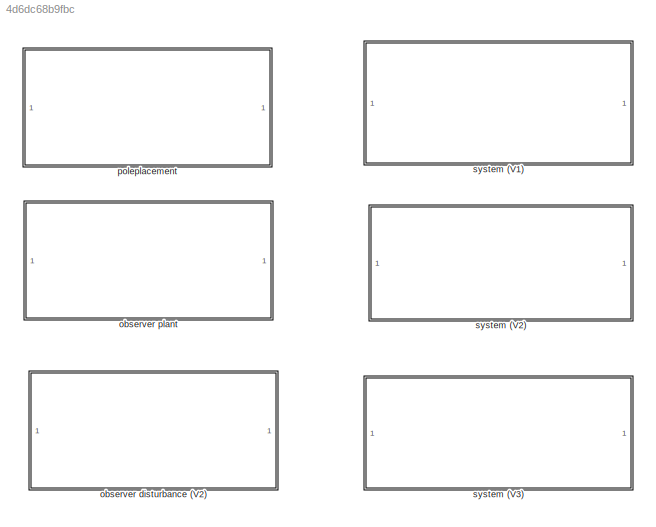
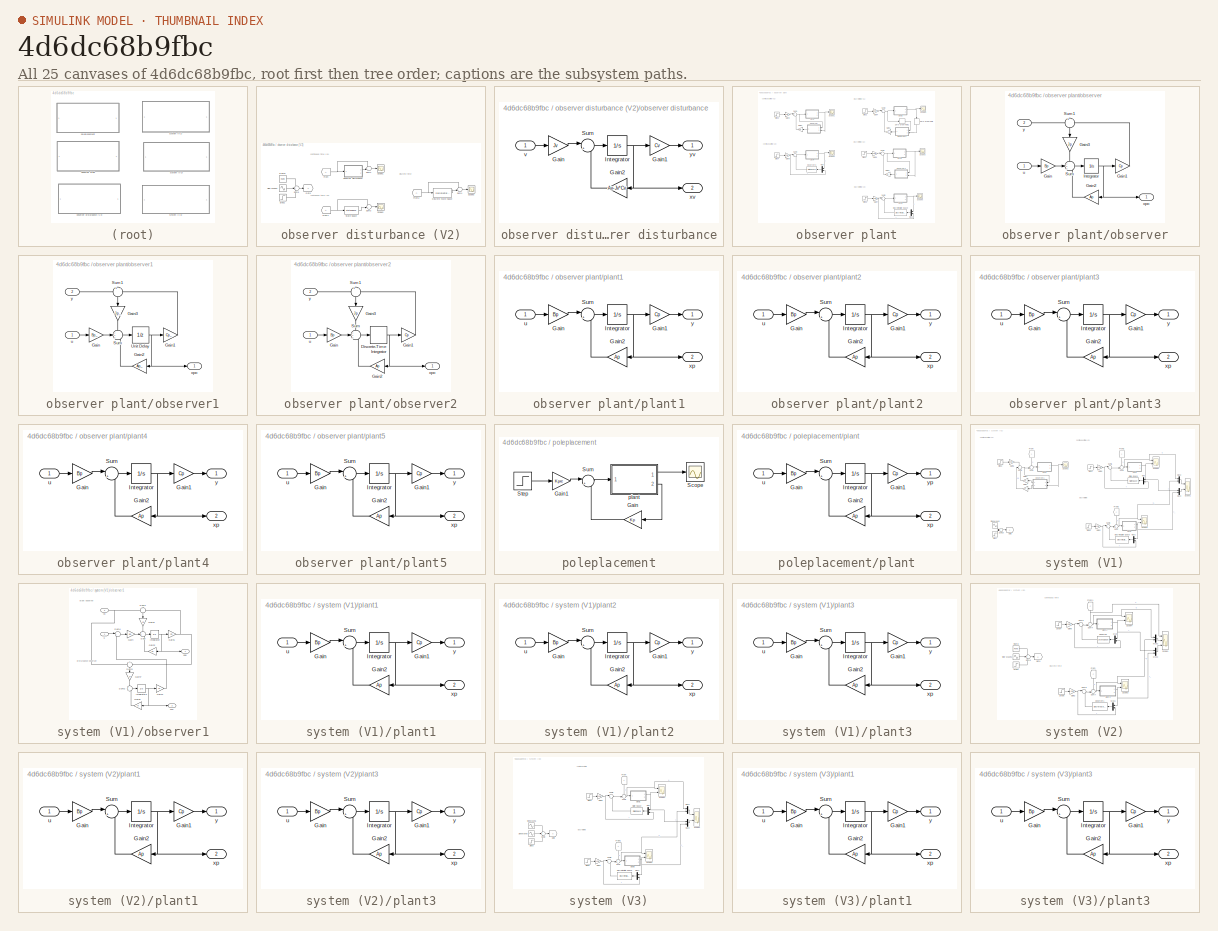
[diagram: thumbnail index - all 25 canvases of the model, root first then tree order]
MODEL slx_4d6dc68b9fbc
KIND model
CONFIG AbsTol = auto
CONFIG EnableMultiTasking = off
CONFIG FixedStep = auto
CONFIG MaxStep = auto
CONFIG MinStep = auto
CONFIG RelTol = 1e-3
CONFIG SampleTimeConstraint = Unconstrained
CONFIG Solver = VariableStepAuto
CONFIG SolverName = VariableStepAuto
CONFIG StartTime = 0.0
CONFIG StopTime = 10.0
BLOCK [SubSystem] observer disturbance (V2)
  Ports = []
  RequestExecContextInheritance = off
BLOCK [DiscreteStateSpace] observer disturbance (V2)/Discrete State-Space
  A = Avo_
  B = Bvo_
  C = Cvo_
  D = Dvo_
  SampleTime = Ts
BLOCK [From] observer disturbance (V2)/From
BLOCK [From] observer disturbance (V2)/From1
BLOCK [From] observer disturbance (V2)/From2
BLOCK [Goto] observer disturbance (V2)/Goto
BLOCK [Reference] observer disturbance (V2)/Ramp  REF=simulink/Sources/Ramp
  Ports = [0, 1]
  SourceBlock = simulink/Sources/Ramp
  SourceProductBaseCode = SL
  SourceProductName = Simulink
  SourceType = Ramp
BLOCK [Scope] observer disturbance (V2)/Scope1
  Floating = off
  NumInputPorts = 1
  Ports = [1]
  ScopeSpecificationString = Simulink.scopes.TimeScopeBlockCfg('CurrentConfiguration', extmgr.ConfigurationSet(extmgr.Configuration('Core','General UI',true),extmgr.Configuration('Core','Source UI',true),extmgr.Configuration('Sources','WiredSimulink',true,'DataLoggingVariableName','ScopeData1'),extmgr.Configuration('Visuals','Time Domain',true,'SerializedDisplays',{struct('MinYLimReal','-2.27312','MaxYLimReal','0.51134','YLab...<+1488ch>
BLOCK [Scope] observer disturbance (V2)/Scope2
  Floating = off
  NumInputPorts = 1
  Ports = [1]
  ScopeSpecificationString = Simulink.scopes.TimeScopeBlockCfg('CurrentConfiguration', extmgr.ConfigurationSet(extmgr.Configuration('Core','General UI',true),extmgr.Configuration('Core','Source UI',true),extmgr.Configuration('Sources','WiredSimulink',true,'DataLoggingVariableName','ScopeData1'),extmgr.Configuration('Visuals','Time Domain',true,'SerializedDisplays',{struct('MinYLimReal','-2.27312','MaxYLimReal','0.51134','YLab...<+1488ch>
BLOCK [Scope] observer disturbance (V2)/Scope3
  Floating = off
  NumInputPorts = 1
  Ports = [1]
  ScopeSpecificationString = Simulink.scopes.TimeScopeBlockCfg('CurrentConfiguration', extmgr.ConfigurationSet(extmgr.Configuration('Core','General UI',true),extmgr.Configuration('Core','Source UI',true),extmgr.Configuration('Sources','WiredSimulink',true,'DataLoggingVariableName','ScopeData2'),extmgr.Configuration('Visuals','Time Domain',true,'SerializedDisplays',{struct('MinYLimReal','-2.27312','MaxYLimReal','0.51134','YLab...<+1488ch>
BLOCK [Sin] observer disturbance (V2)/Sine Wave1
  Amplitude = 2
  Frequency = 2*ref
  Ports = [0, 1]
  SampleTime = 0
BLOCK [StateSpace] observer disturbance (V2)/State-Space
  A = Av-Jv*Cv
  B = Jv
  C = Cv
  D = zeros(size(Cv,1),size(Jv,2))
  InitialCondition = 0
  Ports = [1, 1]
BLOCK [Step] observer disturbance (V2)/Step1
  After = 2
  SampleTime = 0
  Time = 4
BLOCK [Sum] observer disturbance (V2)/Sum2
  IconShape = round
  InputSameDT = off
  Inputs = -+|
  OutDataTypeStr = Inherit: Inherit via internal rule
  Ports = [2, 1]
  SaturateOnIntegerOverflow = off
BLOCK [Sum] observer disturbance (V2)/Sum3
  IconShape = round
  InputSameDT = off
  Inputs = -+|
  OutDataTypeStr = Inherit: Inherit via internal rule
  Ports = [2, 1]
  SaturateOnIntegerOverflow = off
BLOCK [Sum] observer disturbance (V2)/Sum4
  IconShape = round
  InputSameDT = off
  Inputs = -+|
  OutDataTypeStr = Inherit: Inherit via internal rule
  Ports = [2, 1]
  SaturateOnIntegerOverflow = off
BLOCK [Sum] observer disturbance (V2)/Sum6
  IconShape = round
  InputSameDT = off
  Inputs = +++
  OutDataTypeStr = Inherit: Inherit via internal rule
  Ports = [3, 1]
  SaturateOnIntegerOverflow = off
BLOCK [SubSystem] observer disturbance (V2)/observer disturbance
  Ports = [1, 2]
  RequestExecContextInheritance = off
BLOCK [Gain] observer disturbance (V2)/observer disturbance/Gain
  Gain = Jv
  Multiplication = Matrix(K*u)
  OutDataTypeStr = Inherit: Inherit via internal rule
  ParamDataTypeStr = Inherit: Inherit via internal rule
  SaturateOnIntegerOverflow = off
BLOCK [Gain] observer disturbance (V2)/observer disturbance/Gain1
  Gain = Cv
  Multiplication = Matrix(K*u)
  OutDataTypeStr = Inherit: Inherit via internal rule
  ParamDataTypeStr = Inherit: Inherit via internal rule
  SaturateOnIntegerOverflow = off
BLOCK [Gain] observer disturbance (V2)/observer disturbance/Gain2
  Gain = Av-Jv*Cv
  Multiplication = Matrix(K*u)
  OutDataTypeStr = Inherit: Inherit via internal rule
  ParamDataTypeStr = Inherit: Inherit via internal rule
  SaturateOnIntegerOverflow = off
BLOCK [Integrator] observer disturbance (V2)/observer disturbance/Integrator
  Ports = [1, 1]
BLOCK [Sum] observer disturbance (V2)/observer disturbance/Sum
  IconShape = round
  InputSameDT = off
  Inputs = |++
  OutDataTypeStr = Inherit: Inherit via internal rule
  Ports = [2, 1]
  SaturateOnIntegerOverflow = off
BLOCK [Inport] observer disturbance (V2)/observer disturbance/v
  IconDisplay = Port number
BLOCK [Outport] observer disturbance (V2)/observer disturbance/xv
  IconDisplay = Port number
  Port = 2
BLOCK [Outport] observer disturbance (V2)/observer disturbance/yv
  IconDisplay = Port number
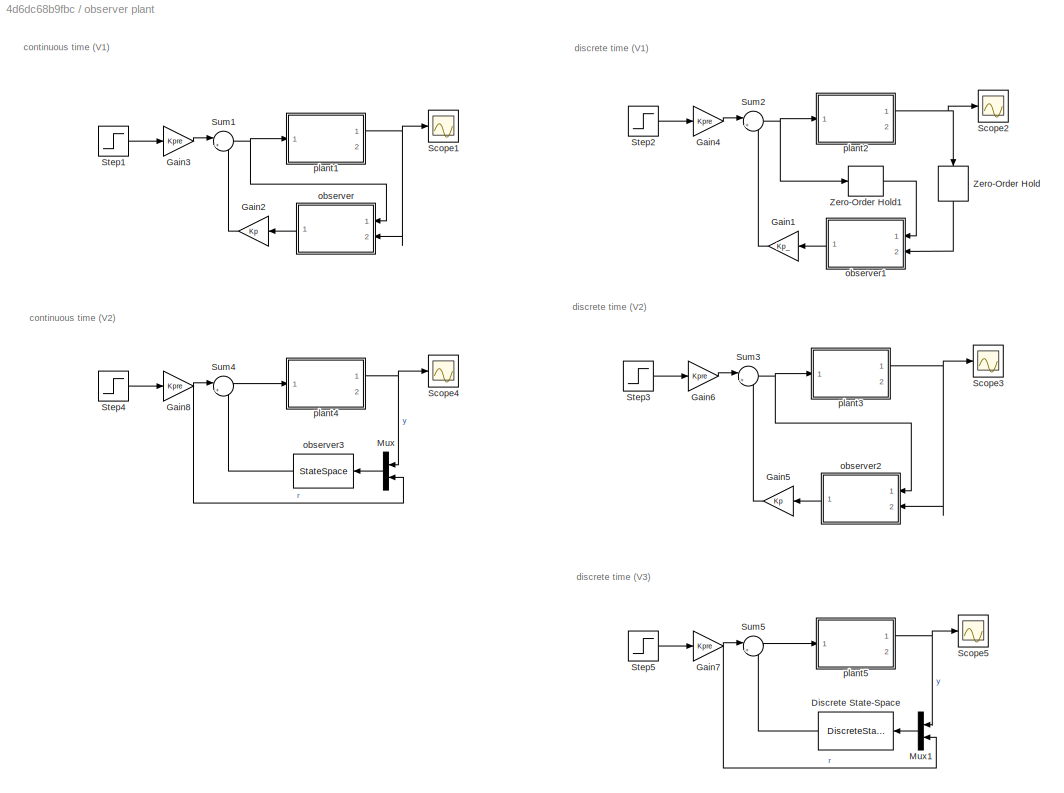
BLOCK [SubSystem] observer plant
  Ports = []
  RequestExecContextInheritance = off
BLOCK [DiscreteStateSpace] observer plant/Discrete State-Space
  A = Apo_
  B = Bpo_
  C = Cpo_
  D = Dpo_
  SampleTime = Ts
BLOCK [Gain] observer plant/Gain1
  Commented = on
  Gain = Kp_
  Multiplication = Matrix(K*u)
  OutDataTypeStr = Inherit: Inherit via internal rule
  ParamDataTypeStr = Inherit: Inherit via internal rule
  SaturateOnIntegerOverflow = off
BLOCK [Gain] observer plant/Gain2
  Gain = Kp
  Multiplication = Matrix(K*u)
  OutDataTypeStr = Inherit: Inherit via internal rule
  ParamDataTypeStr = Inherit: Inherit via internal rule
  SaturateOnIntegerOverflow = off
BLOCK [Gain] observer plant/Gain3
  Gain = Kpre
  Multiplication = Matrix(K*u)
  OutDataTypeStr = Inherit: Inherit via internal rule
  ParamDataTypeStr = Inherit: Inherit via internal rule
  SaturateOnIntegerOverflow = off
BLOCK [Gain] observer plant/Gain4
  Commented = on
  Gain = Kpre
  Multiplication = Matrix(K*u)
  OutDataTypeStr = Inherit: Inherit via internal rule
  ParamDataTypeStr = Inherit: Inherit via internal rule
  SaturateOnIntegerOverflow = off
BLOCK [Gain] observer plant/Gain5
  Gain = Kp
  Multiplication = Matrix(K*u)
  OutDataTypeStr = Inherit: Inherit via internal rule
  ParamDataTypeStr = Inherit: Inherit via internal rule
  SaturateOnIntegerOverflow = off
BLOCK [Gain] observer plant/Gain6
  Gain = Kpre
  Multiplication = Matrix(K*u)
  OutDataTypeStr = Inherit: Inherit via internal rule
  ParamDataTypeStr = Inherit: Inherit via internal rule
  SaturateOnIntegerOverflow = off
BLOCK [Gain] observer plant/Gain7
  Gain = Kpre
  Multiplication = Matrix(K*u)
  OutDataTypeStr = Inherit: Inherit via internal rule
  ParamDataTypeStr = Inherit: Inherit via internal rule
  SaturateOnIntegerOverflow = off
BLOCK [Gain] observer plant/Gain8
  Gain = Kpre
  Multiplication = Matrix(K*u)
  OutDataTypeStr = Inherit: Inherit via internal rule
  ParamDataTypeStr = Inherit: Inherit via internal rule
  SaturateOnIntegerOverflow = off
BLOCK [Mux] observer plant/Mux
  DisplayOption = bar
  Inputs = 2
  Ports = [2, 1]
BLOCK [Mux] observer plant/Mux1
  DisplayOption = bar
  Inputs = 2
  Ports = [2, 1]
BLOCK [Scope] observer plant/Scope1
  Floating = off
  NumInputPorts = 1
  Ports = [1]
  ScopeSpecificationString = Simulink.scopes.TimeScopeBlockCfg('CurrentConfiguration', extmgr.ConfigurationSet(extmgr.Configuration('Core','General UI',true),extmgr.Configuration('Core','Source UI',true),extmgr.Configuration('Sources','WiredSimulink',true,'DataLoggingVariableName','ScopeData1'),extmgr.Configuration('Visuals','Time Domain',true,'SerializedDisplays',{struct('MinYLimReal','-0.9163','MaxYLimReal','8.24668','YLabe...<+1491ch>
BLOCK [Scope] observer plant/Scope2
  Commented = on
  Floating = off
  NumInputPorts = 1
  Ports = [1]
  ScopeSpecificationString = Simulink.scopes.TimeScopeBlockCfg('CurrentConfiguration', extmgr.ConfigurationSet(extmgr.Configuration('Core','General UI',true),extmgr.Configuration('Core','Source UI',true),extmgr.Configuration('Sources','WiredSimulink',true,'DataLoggingVariableName','ScopeData1'),extmgr.Configuration('Visuals','Time Domain',true,'SerializedDisplays',{struct('MinYLimReal','-0.9163','MaxYLimReal','8.24668','YLabe...<+1490ch>
BLOCK [Scope] observer plant/Scope3
  Floating = off
  NumInputPorts = 1
  Ports = [1]
  ScopeSpecificationString = Simulink.scopes.TimeScopeBlockCfg('CurrentConfiguration', extmgr.ConfigurationSet(extmgr.Configuration('Core','General UI',true),extmgr.Configuration('Core','Source UI',true),extmgr.Configuration('Sources','WiredSimulink',true,'DataLoggingVariableName','ScopeData3'),extmgr.Configuration('Visuals','Time Domain',true,'SerializedDisplays',{struct('MinYLimReal','-0.9163','MaxYLimReal','8.24668','YLabe...<+1490ch>
BLOCK [Scope] observer plant/Scope4
  Floating = off
  NumInputPorts = 1
  Ports = [1]
  ScopeSpecificationString = Simulink.scopes.TimeScopeBlockCfg('CurrentConfiguration', extmgr.ConfigurationSet(extmgr.Configuration('Core','General UI',true),extmgr.Configuration('Core','Source UI',true),extmgr.Configuration('Sources','WiredSimulink',true,'DataLoggingVariableName','ScopeData3'),extmgr.Configuration('Visuals','Time Domain',true,'SerializedDisplays',{struct('MinYLimReal','-0.9163','MaxYLimReal','8.24668','YLabe...<+1483ch>
BLOCK [Scope] observer plant/Scope5
  Floating = off
  NumInputPorts = 1
  Ports = [1]
  ScopeSpecificationString = Simulink.scopes.TimeScopeBlockCfg('CurrentConfiguration', extmgr.ConfigurationSet(extmgr.Configuration('Core','General UI',true),extmgr.Configuration('Core','Source UI',true),extmgr.Configuration('Sources','WiredSimulink',true,'DataLoggingVariableName','ScopeData4'),extmgr.Configuration('Visuals','Time Domain',true,'SerializedDisplays',{struct('MinYLimReal','-0.9163','MaxYLimReal','8.24668','YLabe...<+1483ch>
BLOCK [Step] observer plant/Step1
  After = ref
  SampleTime = 0
BLOCK [Step] observer plant/Step2
  After = ref
  Commented = on
  SampleTime = 0
BLOCK [Step] observer plant/Step3
  After = ref
  SampleTime = 0
BLOCK [Step] observer plant/Step4
  After = ref
  SampleTime = 0
BLOCK [Step] observer plant/Step5
  After = ref
  SampleTime = 0
BLOCK [Sum] observer plant/Sum1
  IconShape = round
  InputSameDT = off
  Inputs = |+-
  OutDataTypeStr = Inherit: Inherit via internal rule
  Ports = [2, 1]
  SaturateOnIntegerOverflow = off
BLOCK [Sum] observer plant/Sum2
  Commented = on
  IconShape = round
  InputSameDT = off
  Inputs = |+-
  OutDataTypeStr = Inherit: Inherit via internal rule
  Ports = [2, 1]
  SaturateOnIntegerOverflow = off
BLOCK [Sum] observer plant/Sum3
  IconShape = round
  InputSameDT = off
  Inputs = |+-
  OutDataTypeStr = Inherit: Inherit via internal rule
  Ports = [2, 1]
  SaturateOnIntegerOverflow = off
BLOCK [Sum] observer plant/Sum4
  IconShape = round
  InputSameDT = off
  Inputs = |+-
  OutDataTypeStr = Inherit: Inherit via internal rule
  Ports = [2, 1]
  SaturateOnIntegerOverflow = off
BLOCK [Sum] observer plant/Sum5
  IconShape = round
  InputSameDT = off
  Inputs = |+-
  OutDataTypeStr = Inherit: Inherit via internal rule
  Ports = [2, 1]
  SaturateOnIntegerOverflow = off
BLOCK [ZeroOrderHold] observer plant/Zero-Order Hold
  Commented = on
  SampleTime = Ts
BLOCK [ZeroOrderHold] observer plant/Zero-Order Hold1
  Commented = on
  SampleTime = Ts
BLOCK [SubSystem] observer plant/observer
  Ports = [2, 1]
  RequestExecContextInheritance = off
BLOCK [Gain] observer plant/observer/Gain
  Gain = Bp
  Multiplication = Matrix(K*u)
  OutDataTypeStr = Inherit: Inherit via internal rule
  ParamDataTypeStr = Inherit: Inherit via internal rule
  SaturateOnIntegerOverflow = off
BLOCK [Gain] observer plant/observer/Gain1
  Gain = Cp
  Multiplication = Matrix(K*u)
  OutDataTypeStr = Inherit: Inherit via internal rule
  ParamDataTypeStr = Inherit: Inherit via internal rule
  SaturateOnIntegerOverflow = off
BLOCK [Gain] observer plant/observer/Gain2
  Gain = Ap
  Multiplication = Matrix(K*u)
  OutDataTypeStr = Inherit: Inherit via internal rule
  ParamDataTypeStr = Inherit: Inherit via internal rule
  SaturateOnIntegerOverflow = off
BLOCK [Gain] observer plant/observer/Gain3
  Gain = Jp
  Multiplication = Matrix(K*u)
  OutDataTypeStr = Inherit: Inherit via internal rule
  ParamDataTypeStr = Inherit: Inherit via internal rule
  SaturateOnIntegerOverflow = off
BLOCK [Integrator] observer plant/observer/Integrator
  Ports = [1, 1]
BLOCK [Sum] observer plant/observer/Sum
  IconShape = round
  InputSameDT = off
  Inputs = +++
  OutDataTypeStr = Inherit: Inherit via internal rule
  Ports = [3, 1]
  SaturateOnIntegerOverflow = off
BLOCK [Sum] observer plant/observer/Sum1
  IconShape = round
  InputSameDT = off
  Inputs = +|-
  OutDataTypeStr = Inherit: Inherit via internal rule
  Ports = [2, 1]
  SaturateOnIntegerOverflow = off
BLOCK [Inport] observer plant/observer/u
  IconDisplay = Port number
BLOCK [Outport] observer plant/observer/xpo
  IconDisplay = Port number
BLOCK [Inport] observer plant/observer/y
  IconDisplay = Port number
  Port = 2
BLOCK [SubSystem] observer plant/observer1
  Commented = on
  Ports = [2, 1]
  RequestExecContextInheritance = off
BLOCK [Gain] observer plant/observer1/Gain
  Gain = Bp_
  Multiplication = Matrix(K*u)
  OutDataTypeStr = Inherit: Inherit via internal rule
  ParamDataTypeStr = Inherit: Inherit via internal rule
  SaturateOnIntegerOverflow = off
BLOCK [Gain] observer plant/observer1/Gain1
  Gain = Cp_
  Multiplication = Matrix(K*u)
  OutDataTypeStr = Inherit: Inherit via internal rule
  ParamDataTypeStr = Inherit: Inherit via internal rule
  SaturateOnIntegerOverflow = off
BLOCK [Gain] observer plant/observer1/Gain2
  Gain = Ap_
  Multiplication = Matrix(K*u)
  OutDataTypeStr = Inherit: Inherit via internal rule
  ParamDataTypeStr = Inherit: Inherit via internal rule
  SaturateOnIntegerOverflow = off
BLOCK [Gain] observer plant/observer1/Gain3
  Gain = Jp_
  Multiplication = Matrix(K*u)
  OutDataTypeStr = Inherit: Inherit via internal rule
  ParamDataTypeStr = Inherit: Inherit via internal rule
  SaturateOnIntegerOverflow = off
BLOCK [Sum] observer plant/observer1/Sum
  IconShape = round
  InputSameDT = off
  Inputs = +++
  OutDataTypeStr = Inherit: Inherit via internal rule
  Ports = [3, 1]
  SaturateOnIntegerOverflow = off
BLOCK [Sum] observer plant/observer1/Sum1
  IconShape = round
  InputSameDT = off
  Inputs = +|-
  OutDataTypeStr = Inherit: Inherit via internal rule
  Ports = [2, 1]
  SaturateOnIntegerOverflow = off
BLOCK [UnitDelay] observer plant/observer1/Unit Delay
  InputProcessing = Elements as channels (sample based)
  SampleTime = Ts
BLOCK [Inport] observer plant/observer1/u
  IconDisplay = Port number
BLOCK [Outport] observer plant/observer1/xpo
  IconDisplay = Port number
BLOCK [Inport] observer plant/observer1/y
  IconDisplay = Port number
  Port = 2
BLOCK [SubSystem] observer plant/observer2
  Ports = [2, 1]
  RequestExecContextInheritance = off
BLOCK [DiscreteIntegrator] observer plant/observer2/Discrete-Time Integrator
  ICPrevOutput = DiscIntNeverNeededParam
  ICPrevScaledInput = DiscIntNeverNeededParam
  InitialConditionSetting = Auto
  Ports = [1, 1]
  SampleTime = 0.01
BLOCK [Gain] observer plant/observer2/Gain
  Gain = Bp
  Multiplication = Matrix(K*u)
  OutDataTypeStr = Inherit: Inherit via internal rule
  ParamDataTypeStr = Inherit: Inherit via internal rule
  SaturateOnIntegerOverflow = off
BLOCK [Gain] observer plant/observer2/Gain1
  Gain = Cp
  Multiplication = Matrix(K*u)
  OutDataTypeStr = Inherit: Inherit via internal rule
  ParamDataTypeStr = Inherit: Inherit via internal rule
  SaturateOnIntegerOverflow = off
BLOCK [Gain] observer plant/observer2/Gain2
  Gain = Ap
  Multiplication = Matrix(K*u)
  OutDataTypeStr = Inherit: Inherit via internal rule
  ParamDataTypeStr = Inherit: Inherit via internal rule
  SaturateOnIntegerOverflow = off
BLOCK [Gain] observer plant/observer2/Gain3
  Gain = Jp
  Multiplication = Matrix(K*u)
  OutDataTypeStr = Inherit: Inherit via internal rule
  ParamDataTypeStr = Inherit: Inherit via internal rule
  SaturateOnIntegerOverflow = off
BLOCK [Sum] observer plant/observer2/Sum
  IconShape = round
  InputSameDT = off
  Inputs = +++
  OutDataTypeStr = Inherit: Inherit via internal rule
  Ports = [3, 1]
  SaturateOnIntegerOverflow = off
BLOCK [Sum] observer plant/observer2/Sum1
  IconShape = round
  InputSameDT = off
  Inputs = +|-
  OutDataTypeStr = Inherit: Inherit via internal rule
  Ports = [2, 1]
  SaturateOnIntegerOverflow = off
BLOCK [Inport] observer plant/observer2/u
  IconDisplay = Port number
BLOCK [Outport] observer plant/observer2/xpo
  IconDisplay = Port number
BLOCK [Inport] observer plant/observer2/y
  IconDisplay = Port number
  Port = 2
BLOCK [StateSpace] observer plant/observer3
  A = Ap-Bp*Kp-Jp*Cp
  B = Bpo
  C = Kp
  D = zeros(size(Kp,1),size(Bpo,2))
  InitialCondition = 0
  Ports = [1, 1]
BLOCK [SubSystem] observer plant/plant1
  Ports = [1, 2]
  RequestExecContextInheritance = off
BLOCK [Gain] observer plant/plant1/Gain
  Gain = Bp
  Multiplication = Matrix(K*u)
  OutDataTypeStr = Inherit: Inherit via internal rule
  ParamDataTypeStr = Inherit: Inherit via internal rule
  SaturateOnIntegerOverflow = off
BLOCK [Gain] observer plant/plant1/Gain1
  Gain = Cp
  Multiplication = Matrix(K*u)
  OutDataTypeStr = Inherit: Inherit via internal rule
  ParamDataTypeStr = Inherit: Inherit via internal rule
  SaturateOnIntegerOverflow = off
BLOCK [Gain] observer plant/plant1/Gain2
  Gain = Ap
  Multiplication = Matrix(K*u)
  OutDataTypeStr = Inherit: Inherit via internal rule
  ParamDataTypeStr = Inherit: Inherit via internal rule
  SaturateOnIntegerOverflow = off
BLOCK [Integrator] observer plant/plant1/Integrator
  Ports = [1, 1]
BLOCK [Sum] observer plant/plant1/Sum
  IconShape = round
  InputSameDT = off
  Inputs = |++
  OutDataTypeStr = Inherit: Inherit via internal rule
  Ports = [2, 1]
  SaturateOnIntegerOverflow = off
BLOCK [Inport] observer plant/plant1/u
  IconDisplay = Port number
BLOCK [Outport] observer plant/plant1/xp
  IconDisplay = Port number
  Port = 2
BLOCK [Outport] observer plant/plant1/y
  IconDisplay = Port number
BLOCK [SubSystem] observer plant/plant2
  Commented = on
  Ports = [1, 2]
  RequestExecContextInheritance = off
BLOCK [Gain] observer plant/plant2/Gain
  Gain = Bp
  Multiplication = Matrix(K*u)
  OutDataTypeStr = Inherit: Inherit via internal rule
  ParamDataTypeStr = Inherit: Inherit via internal rule
  SaturateOnIntegerOverflow = off
BLOCK [Gain] observer plant/plant2/Gain1
  Gain = Cp
  Multiplication = Matrix(K*u)
  OutDataTypeStr = Inherit: Inherit via internal rule
  ParamDataTypeStr = Inherit: Inherit via internal rule
  SaturateOnIntegerOverflow = off
BLOCK [Gain] observer plant/plant2/Gain2
  Gain = Ap
  Multiplication = Matrix(K*u)
  OutDataTypeStr = Inherit: Inherit via internal rule
  ParamDataTypeStr = Inherit: Inherit via internal rule
  SaturateOnIntegerOverflow = off
BLOCK [Integrator] observer plant/plant2/Integrator
  Ports = [1, 1]
BLOCK [Sum] observer plant/plant2/Sum
  IconShape = round
  InputSameDT = off
  Inputs = |++
  OutDataTypeStr = Inherit: Inherit via internal rule
  Ports = [2, 1]
  SaturateOnIntegerOverflow = off
BLOCK [Inport] observer plant/plant2/u
  IconDisplay = Port number
BLOCK [Outport] observer plant/plant2/xp
  IconDisplay = Port number
  Port = 2
BLOCK [Outport] observer plant/plant2/y
  IconDisplay = Port number
BLOCK [SubSystem] observer plant/plant3
  Ports = [1, 2]
  RequestExecContextInheritance = off
BLOCK [Gain] observer plant/plant3/Gain
  Gain = Bp
  Multiplication = Matrix(K*u)
  OutDataTypeStr = Inherit: Inherit via internal rule
  ParamDataTypeStr = Inherit: Inherit via internal rule
  SaturateOnIntegerOverflow = off
BLOCK [Gain] observer plant/plant3/Gain1
  Gain = Cp
  Multiplication = Matrix(K*u)
  OutDataTypeStr = Inherit: Inherit via internal rule
  ParamDataTypeStr = Inherit: Inherit via internal rule
  SaturateOnIntegerOverflow = off
BLOCK [Gain] observer plant/plant3/Gain2
  Gain = Ap
  Multiplication = Matrix(K*u)
  OutDataTypeStr = Inherit: Inherit via internal rule
  ParamDataTypeStr = Inherit: Inherit via internal rule
  SaturateOnIntegerOverflow = off
BLOCK [Integrator] observer plant/plant3/Integrator
  Ports = [1, 1]
BLOCK [Sum] observer plant/plant3/Sum
  IconShape = round
  InputSameDT = off
  Inputs = |++
  OutDataTypeStr = Inherit: Inherit via internal rule
  Ports = [2, 1]
  SaturateOnIntegerOverflow = off
BLOCK [Inport] observer plant/plant3/u
  IconDisplay = Port number
BLOCK [Outport] observer plant/plant3/xp
  IconDisplay = Port number
  Port = 2
BLOCK [Outport] observer plant/plant3/y
  IconDisplay = Port number
BLOCK [SubSystem] observer plant/plant4
  Ports = [1, 2]
  RequestExecContextInheritance = off
BLOCK [Gain] observer plant/plant4/Gain
  Gain = Bp
  Multiplication = Matrix(K*u)
  OutDataTypeStr = Inherit: Inherit via internal rule
  ParamDataTypeStr = Inherit: Inherit via internal rule
  SaturateOnIntegerOverflow = off
BLOCK [Gain] observer plant/plant4/Gain1
  Gain = Cp
  Multiplication = Matrix(K*u)
  OutDataTypeStr = Inherit: Inherit via internal rule
  ParamDataTypeStr = Inherit: Inherit via internal rule
  SaturateOnIntegerOverflow = off
BLOCK [Gain] observer plant/plant4/Gain2
  Gain = Ap
  Multiplication = Matrix(K*u)
  OutDataTypeStr = Inherit: Inherit via internal rule
  ParamDataTypeStr = Inherit: Inherit via internal rule
  SaturateOnIntegerOverflow = off
BLOCK [Integrator] observer plant/plant4/Integrator
  Ports = [1, 1]
BLOCK [Sum] observer plant/plant4/Sum
  IconShape = round
  InputSameDT = off
  Inputs = |++
  OutDataTypeStr = Inherit: Inherit via internal rule
  Ports = [2, 1]
  SaturateOnIntegerOverflow = off
BLOCK [Inport] observer plant/plant4/u
  IconDisplay = Port number
BLOCK [Outport] observer plant/plant4/xp
  IconDisplay = Port number
  Port = 2
BLOCK [Outport] observer plant/plant4/y
  IconDisplay = Port number
BLOCK [SubSystem] observer plant/plant5
  Ports = [1, 2]
  RequestExecContextInheritance = off
BLOCK [Gain] observer plant/plant5/Gain
  Gain = Bp
  Multiplication = Matrix(K*u)
  OutDataTypeStr = Inherit: Inherit via internal rule
  ParamDataTypeStr = Inherit: Inherit via internal rule
  SaturateOnIntegerOverflow = off
BLOCK [Gain] observer plant/plant5/Gain1
  Gain = Cp
  Multiplication = Matrix(K*u)
  OutDataTypeStr = Inherit: Inherit via internal rule
  ParamDataTypeStr = Inherit: Inherit via internal rule
  SaturateOnIntegerOverflow = off
BLOCK [Gain] observer plant/plant5/Gain2
  Gain = Ap
  Multiplication = Matrix(K*u)
  OutDataTypeStr = Inherit: Inherit via internal rule
  ParamDataTypeStr = Inherit: Inherit via internal rule
  SaturateOnIntegerOverflow = off
BLOCK [Integrator] observer plant/plant5/Integrator
  Ports = [1, 1]
BLOCK [Sum] observer plant/plant5/Sum
  IconShape = round
  InputSameDT = off
  Inputs = |++
  OutDataTypeStr = Inherit: Inherit via internal rule
  Ports = [2, 1]
  SaturateOnIntegerOverflow = off
BLOCK [Inport] observer plant/plant5/u
  IconDisplay = Port number
BLOCK [Outport] observer plant/plant5/xp
  IconDisplay = Port number
  Port = 2
BLOCK [Outport] observer plant/plant5/y
  IconDisplay = Port number
BLOCK [SubSystem] poleplacement
  Commented = on
  Ports = []
  RequestExecContextInheritance = off
BLOCK [Gain] poleplacement/Gain
  Gain = Kp
  Multiplication = Matrix(K*u)
  OutDataTypeStr = Inherit: Inherit via internal rule
  ParamDataTypeStr = Inherit: Inherit via internal rule
  SaturateOnIntegerOverflow = off
BLOCK [Gain] poleplacement/Gain1
  Gain = Kpre
  Multiplication = Matrix(K*u)
  OutDataTypeStr = Inherit: Inherit via internal rule
  ParamDataTypeStr = Inherit: Inherit via internal rule
  SaturateOnIntegerOverflow = off
BLOCK [Scope] poleplacement/Scope
  Floating = off
  NumInputPorts = 1
  Ports = [1]
  ScopeSpecificationString = Simulink.scopes.TimeScopeBlockCfg('CurrentConfiguration', extmgr.ConfigurationSet(extmgr.Configuration('Core','General UI',true),extmgr.Configuration('Core','Source UI',true),extmgr.Configuration('Sources','WiredSimulink',true),extmgr.Configuration('Visuals','Time Domain',true,'SerializedDisplays',{struct('MinYLimReal','-0.9163','MaxYLimReal','8.24668','YLabelReal','','MinYLimMag','0.00000','MaxYL...<+1420ch>
BLOCK [Step] poleplacement/Step
  After = ref
  SampleTime = 0
BLOCK [Sum] poleplacement/Sum
  IconShape = round
  InputSameDT = off
  Inputs = |+-
  OutDataTypeStr = Inherit: Inherit via internal rule
  Ports = [2, 1]
  SaturateOnIntegerOverflow = off
BLOCK [SubSystem] poleplacement/plant
  Ports = [1, 2]
  RequestExecContextInheritance = off
BLOCK [Gain] poleplacement/plant/Gain
  Gain = Bp
  Multiplication = Matrix(K*u)
  OutDataTypeStr = Inherit: Inherit via internal rule
  ParamDataTypeStr = Inherit: Inherit via internal rule
  SaturateOnIntegerOverflow = off
BLOCK [Gain] poleplacement/plant/Gain1
  Gain = Cp
  Multiplication = Matrix(K*u)
  OutDataTypeStr = Inherit: Inherit via internal rule
  ParamDataTypeStr = Inherit: Inherit via internal rule
  SaturateOnIntegerOverflow = off
BLOCK [Gain] poleplacement/plant/Gain2
  Gain = Ap
  Multiplication = Matrix(K*u)
  OutDataTypeStr = Inherit: Inherit via internal rule
  ParamDataTypeStr = Inherit: Inherit via internal rule
  SaturateOnIntegerOverflow = off
BLOCK [Integrator] poleplacement/plant/Integrator
  Ports = [1, 1]
BLOCK [Sum] poleplacement/plant/Sum
  IconShape = round
  InputSameDT = off
  Inputs = |++
  OutDataTypeStr = Inherit: Inherit via internal rule
  Ports = [2, 1]
  SaturateOnIntegerOverflow = off
BLOCK [Inport] poleplacement/plant/u
  IconDisplay = Port number
BLOCK [Outport] poleplacement/plant/xp
  IconDisplay = Port number
  Port = 2
BLOCK [Outport] poleplacement/plant/yp
  IconDisplay = Port number
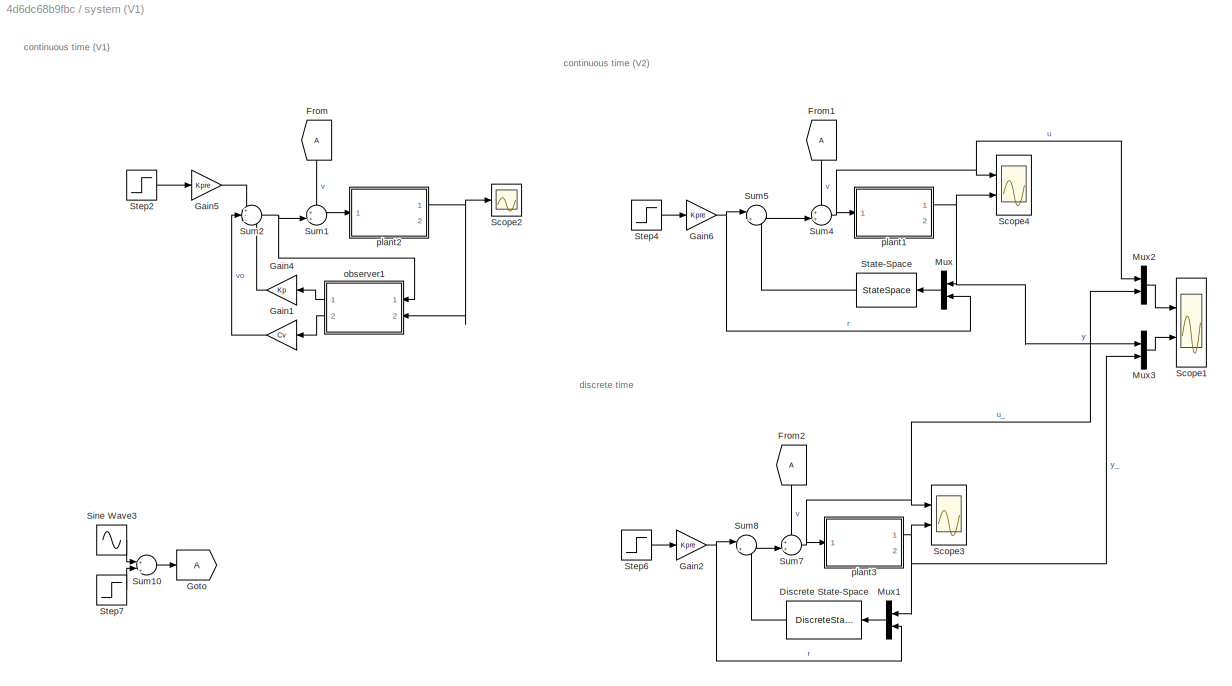
BLOCK [SubSystem] system (V1)
  Ports = []
  RequestExecContextInheritance = off
BLOCK [DiscreteStateSpace] system (V1)/Discrete State-Space
  A = Ao_
  B = Bo_
  C = Co_
  D = Do_
  SampleTime = Ts
BLOCK [From] system (V1)/From
BLOCK [From] system (V1)/From1
BLOCK [From] system (V1)/From2
BLOCK [Gain] system (V1)/Gain1
  Gain = Cv
  Multiplication = Matrix(K*u)
  OutDataTypeStr = Inherit: Inherit via internal rule
  ParamDataTypeStr = Inherit: Inherit via internal rule
  SaturateOnIntegerOverflow = off
BLOCK [Gain] system (V1)/Gain2
  Gain = Kpre
  Multiplication = Matrix(K*u)
  OutDataTypeStr = Inherit: Inherit via internal rule
  ParamDataTypeStr = Inherit: Inherit via internal rule
  SaturateOnIntegerOverflow = off
BLOCK [Gain] system (V1)/Gain4
  Gain = Kp
  Multiplication = Matrix(K*u)
  OutDataTypeStr = Inherit: Inherit via internal rule
  ParamDataTypeStr = Inherit: Inherit via internal rule
  SaturateOnIntegerOverflow = off
BLOCK [Gain] system (V1)/Gain5
  Gain = Kpre
  Multiplication = Matrix(K*u)
  OutDataTypeStr = Inherit: Inherit via internal rule
  ParamDataTypeStr = Inherit: Inherit via internal rule
  SaturateOnIntegerOverflow = off
BLOCK [Gain] system (V1)/Gain6
  Gain = Kpre
  Multiplication = Matrix(K*u)
  OutDataTypeStr = Inherit: Inherit via internal rule
  ParamDataTypeStr = Inherit: Inherit via internal rule
  SaturateOnIntegerOverflow = off
BLOCK [Goto] system (V1)/Goto
BLOCK [Mux] system (V1)/Mux
  DisplayOption = bar
  Inputs = 2
  Ports = [2, 1]
BLOCK [Mux] system (V1)/Mux1
  DisplayOption = bar
  Inputs = 2
  Ports = [2, 1]
BLOCK [Mux] system (V1)/Mux2
  DisplayOption = bar
  Inputs = 2
  Ports = [2, 1]
BLOCK [Mux] system (V1)/Mux3
  DisplayOption = bar
  Inputs = 2
  Ports = [2, 1]
BLOCK [Scope] system (V1)/Scope1
  Floating = off
  NumInputPorts = 2
  Ports = [2]
  ScopeSpecificationString = Simulink.scopes.TimeScopeBlockCfg('CurrentConfiguration', extmgr.ConfigurationSet(extmgr.Configuration('Core','General UI',true,'FigureColor',[0.8 0.8 0.8]),extmgr.Configuration('Core','Source UI',true),extmgr.Configuration('Sources','WiredSimulink',true,'DataLoggingVariableName','ScopeData2'),extmgr.Configuration('Visuals','Time Domain',true,'SerializedDisplays',{struct('MinYLimReal','-1.23494','...<+2575ch>
BLOCK [Scope] system (V1)/Scope2
  Floating = off
  NumInputPorts = 1
  Ports = [1]
  ScopeSpecificationString = Simulink.scopes.TimeScopeBlockCfg('CurrentConfiguration', extmgr.ConfigurationSet(extmgr.Configuration('Core','General UI',true),extmgr.Configuration('Core','Source UI',true),extmgr.Configuration('Sources','WiredSimulink',true,'DataLoggingVariableName','ScopeData2'),extmgr.Configuration('Visuals','Time Domain',true,'SerializedDisplays',{struct('MinYLimReal','-2.42685','MaxYLimReal','11.48806','YLa...<+1496ch>
BLOCK [Scope] system (V1)/Scope3
  Floating = off
  NumInputPorts = 2
  Ports = [2]
  ScopeSpecificationString = Simulink.scopes.TimeScopeBlockCfg('CurrentConfiguration', extmgr.ConfigurationSet(extmgr.Configuration('Core','General UI',true),extmgr.Configuration('Core','Source UI',true),extmgr.Configuration('Sources','WiredSimulink',true,'DataLoggingVariableName','ScopeData4'),extmgr.Configuration('Visuals','Time Domain',true,'SerializedDisplays',{struct('MinYLimReal','-1.23494','MaxYLimReal','5.63214','YLab...<+2124ch>
BLOCK [Scope] system (V1)/Scope4
  Floating = off
  NumInputPorts = 2
  Ports = [2]
  ScopeSpecificationString = Simulink.scopes.TimeScopeBlockCfg('CurrentConfiguration', extmgr.ConfigurationSet(extmgr.Configuration('Core','General UI',true),extmgr.Configuration('Core','Source UI',true),extmgr.Configuration('Sources','WiredSimulink',true,'DataLoggingVariableName','ScopeData5'),extmgr.Configuration('Visuals','Time Domain',true,'SerializedDisplays',{struct('MinYLimReal','-1.10096','MaxYLimReal','5.50816','YLab...<+2120ch>
BLOCK [Sin] system (V1)/Sine Wave3
  Amplitude = 2
  Frequency = 2*ref
  Ports = [0, 1]
  SampleTime = 0
BLOCK [StateSpace] system (V1)/State-Space
  A = Ao
  B = Bo
  C = K
  D = zeros(size(K,1),size(Bo,2))
  InitialCondition = 0
  Ports = [1, 1]
BLOCK [Step] system (V1)/Step2
  After = ref
  SampleTime = 0
BLOCK [Step] system (V1)/Step4
  After = ref
  SampleTime = 0
BLOCK [Step] system (V1)/Step6
  After = ref
  SampleTime = 0
BLOCK [Step] system (V1)/Step7
  After = 2
  SampleTime = 0
  Time = 4
BLOCK [Sum] system (V1)/Sum1
  IconShape = round
  InputSameDT = off
  Inputs = ++|
  OutDataTypeStr = Inherit: Inherit via internal rule
  Ports = [2, 1]
  SaturateOnIntegerOverflow = off
BLOCK [Sum] system (V1)/Sum10
  IconShape = round
  InputSameDT = off
  Inputs = +|+
  OutDataTypeStr = Inherit: Inherit via internal rule
  Ports = [2, 1]
  SaturateOnIntegerOverflow = off
BLOCK [Sum] system (V1)/Sum2
  IconShape = round
  InputSameDT = off
  Inputs = +--
  OutDataTypeStr = Inherit: Inherit via internal rule
  Ports = [3, 1]
  SaturateOnIntegerOverflow = off
BLOCK [Sum] system (V1)/Sum4
  IconShape = round
  InputSameDT = off
  Inputs = ++|
  OutDataTypeStr = Inherit: Inherit via internal rule
  Ports = [2, 1]
  SaturateOnIntegerOverflow = off
BLOCK [Sum] system (V1)/Sum5
  IconShape = round
  InputSameDT = off
  Inputs = |+-
  OutDataTypeStr = Inherit: Inherit via internal rule
  Ports = [2, 1]
  SaturateOnIntegerOverflow = off
BLOCK [Sum] system (V1)/Sum7
  IconShape = round
  InputSameDT = off
  Inputs = ++|
  OutDataTypeStr = Inherit: Inherit via internal rule
  Ports = [2, 1]
  SaturateOnIntegerOverflow = off
BLOCK [Sum] system (V1)/Sum8
  IconShape = round
  InputSameDT = off
  Inputs = |+-
  OutDataTypeStr = Inherit: Inherit via internal rule
  Ports = [2, 1]
  SaturateOnIntegerOverflow = off
BLOCK [SubSystem] system (V1)/observer1
  Ports = [2, 2]
  RequestExecContextInheritance = off
BLOCK [Gain] system (V1)/observer1/Gain
  Gain = Bp
  Multiplication = Matrix(K*u)
  OutDataTypeStr = Inherit: Inherit via internal rule
  ParamDataTypeStr = Inherit: Inherit via internal rule
  SaturateOnIntegerOverflow = off
BLOCK [Gain] system (V1)/observer1/Gain1
  Gain = Cp
  Multiplication = Matrix(K*u)
  OutDataTypeStr = Inherit: Inherit via internal rule
  ParamDataTypeStr = Inherit: Inherit via internal rule
  SaturateOnIntegerOverflow = off
BLOCK [Gain] system (V1)/observer1/Gain2
  Gain = Ap
  Multiplication = Matrix(K*u)
  OutDataTypeStr = Inherit: Inherit via internal rule
  ParamDataTypeStr = Inherit: Inherit via internal rule
  SaturateOnIntegerOverflow = off
BLOCK [Gain] system (V1)/observer1/Gain3
  Gain = Jp
  Multiplication = Matrix(K*u)
  OutDataTypeStr = Inherit: Inherit via internal rule
  ParamDataTypeStr = Inherit: Inherit via internal rule
  SaturateOnIntegerOverflow = off
BLOCK [Gain] system (V1)/observer1/Gain4
  Gain = Cv
  Multiplication = Matrix(K*u)
  OutDataTypeStr = Inherit: Inherit via internal rule
  ParamDataTypeStr = Inherit: Inherit via internal rule
  SaturateOnIntegerOverflow = off
BLOCK [Gain] system (V1)/observer1/Gain6
  Gain = Av
  Multiplication = Matrix(K*u)
  OutDataTypeStr = Inherit: Inherit via internal rule
  ParamDataTypeStr = Inherit: Inherit via internal rule
  SaturateOnIntegerOverflow = off
BLOCK [Gain] system (V1)/observer1/Gain7
  Gain = Jv
  Multiplication = Matrix(K*u)
  OutDataTypeStr = Inherit: Inherit via internal rule
  ParamDataTypeStr = Inherit: Inherit via internal rule
  SaturateOnIntegerOverflow = off
BLOCK [Integrator] system (V1)/observer1/Integrator
  Ports = [1, 1]
BLOCK [Integrator] system (V1)/observer1/Integrator1
  Ports = [1, 1]
BLOCK [Sum] system (V1)/observer1/Sum
  IconShape = round
  InputSameDT = off
  Inputs = +++
  OutDataTypeStr = Inherit: Inherit via internal rule
  Ports = [3, 1]
  SaturateOnIntegerOverflow = off
BLOCK [Sum] system (V1)/observer1/Sum1
  IconShape = round
  InputSameDT = off
  Inputs = +|-
  OutDataTypeStr = Inherit: Inherit via internal rule
  Ports = [2, 1]
  SaturateOnIntegerOverflow = off
BLOCK [Sum] system (V1)/observer1/Sum2
  IconShape = round
  InputSameDT = off
  Inputs = +|+
  OutDataTypeStr = Inherit: Inherit via internal rule
  Ports = [2, 1]
  SaturateOnIntegerOverflow = off
BLOCK [Sum] system (V1)/observer1/Sum3
  IconShape = round
  InputSameDT = off
  Inputs = +|-
  OutDataTypeStr = Inherit: Inherit via internal rule
  Ports = [2, 1]
  SaturateOnIntegerOverflow = off
BLOCK [Sum] system (V1)/observer1/Sum4
  IconShape = round
  InputSameDT = off
  Inputs = |++
  OutDataTypeStr = Inherit: Inherit via internal rule
  Ports = [2, 1]
  SaturateOnIntegerOverflow = off
BLOCK [Inport] system (V1)/observer1/u
  IconDisplay = Port number
BLOCK [Outport] system (V1)/observer1/xpo
  IconDisplay = Port number
BLOCK [Outport] system (V1)/observer1/xvo
  IconDisplay = Port number
  Port = 2
BLOCK [Inport] system (V1)/observer1/yp
  IconDisplay = Port number
  Port = 2
BLOCK [SubSystem] system (V1)/plant1
  Ports = [1, 2]
  RequestExecContextInheritance = off
BLOCK [Gain] system (V1)/plant1/Gain
  Gain = Bp
  Multiplication = Matrix(K*u)
  OutDataTypeStr = Inherit: Inherit via internal rule
  ParamDataTypeStr = Inherit: Inherit via internal rule
  SaturateOnIntegerOverflow = off
BLOCK [Gain] system (V1)/plant1/Gain1
  Gain = Cp
  Multiplication = Matrix(K*u)
  OutDataTypeStr = Inherit: Inherit via internal rule
  ParamDataTypeStr = Inherit: Inherit via internal rule
  SaturateOnIntegerOverflow = off
BLOCK [Gain] system (V1)/plant1/Gain2
  Gain = Ap
  Multiplication = Matrix(K*u)
  OutDataTypeStr = Inherit: Inherit via internal rule
  ParamDataTypeStr = Inherit: Inherit via internal rule
  SaturateOnIntegerOverflow = off
BLOCK [Integrator] system (V1)/plant1/Integrator
  Ports = [1, 1]
BLOCK [Sum] system (V1)/plant1/Sum
  IconShape = round
  InputSameDT = off
  Inputs = |++
  OutDataTypeStr = Inherit: Inherit via internal rule
  Ports = [2, 1]
  SaturateOnIntegerOverflow = off
BLOCK [Inport] system (V1)/plant1/u
  IconDisplay = Port number
BLOCK [Outport] system (V1)/plant1/xp
  IconDisplay = Port number
  Port = 2
BLOCK [Outport] system (V1)/plant1/y
  IconDisplay = Port number
BLOCK [SubSystem] system (V1)/plant2
  Ports = [1, 2]
  RequestExecContextInheritance = off
BLOCK [Gain] system (V1)/plant2/Gain
  Gain = Bp
  Multiplication = Matrix(K*u)
  OutDataTypeStr = Inherit: Inherit via internal rule
  ParamDataTypeStr = Inherit: Inherit via internal rule
  SaturateOnIntegerOverflow = off
BLOCK [Gain] system (V1)/plant2/Gain1
  Gain = Cp
  Multiplication = Matrix(K*u)
  OutDataTypeStr = Inherit: Inherit via internal rule
  ParamDataTypeStr = Inherit: Inherit via internal rule
  SaturateOnIntegerOverflow = off
BLOCK [Gain] system (V1)/plant2/Gain2
  Gain = Ap
  Multiplication = Matrix(K*u)
  OutDataTypeStr = Inherit: Inherit via internal rule
  ParamDataTypeStr = Inherit: Inherit via internal rule
  SaturateOnIntegerOverflow = off
BLOCK [Integrator] system (V1)/plant2/Integrator
  Ports = [1, 1]
BLOCK [Sum] system (V1)/plant2/Sum
  IconShape = round
  InputSameDT = off
  Inputs = |++
  OutDataTypeStr = Inherit: Inherit via internal rule
  Ports = [2, 1]
  SaturateOnIntegerOverflow = off
BLOCK [Inport] system (V1)/plant2/u
  IconDisplay = Port number
BLOCK [Outport] system (V1)/plant2/xp
  IconDisplay = Port number
  Port = 2
BLOCK [Outport] system (V1)/plant2/y
  IconDisplay = Port number
BLOCK [SubSystem] system (V1)/plant3
  Ports = [1, 2]
  RequestExecContextInheritance = off
BLOCK [Gain] system (V1)/plant3/Gain
  Gain = Bp
  Multiplication = Matrix(K*u)
  OutDataTypeStr = Inherit: Inherit via internal rule
  ParamDataTypeStr = Inherit: Inherit via internal rule
  SaturateOnIntegerOverflow = off
BLOCK [Gain] system (V1)/plant3/Gain1
  Gain = Cp
  Multiplication = Matrix(K*u)
  OutDataTypeStr = Inherit: Inherit via internal rule
  ParamDataTypeStr = Inherit: Inherit via internal rule
  SaturateOnIntegerOverflow = off
BLOCK [Gain] system (V1)/plant3/Gain2
  Gain = Ap
  Multiplication = Matrix(K*u)
  OutDataTypeStr = Inherit: Inherit via internal rule
  ParamDataTypeStr = Inherit: Inherit via internal rule
  SaturateOnIntegerOverflow = off
BLOCK [Integrator] system (V1)/plant3/Integrator
  Ports = [1, 1]
BLOCK [Sum] system (V1)/plant3/Sum
  IconShape = round
  InputSameDT = off
  Inputs = |++
  OutDataTypeStr = Inherit: Inherit via internal rule
  Ports = [2, 1]
  SaturateOnIntegerOverflow = off
BLOCK [Inport] system (V1)/plant3/u
  IconDisplay = Port number
BLOCK [Outport] system (V1)/plant3/xp
  IconDisplay = Port number
  Port = 2
BLOCK [Outport] system (V1)/plant3/y
  IconDisplay = Port number
BLOCK [SubSystem] system (V2)
  Ports = []
  RequestExecContextInheritance = off
BLOCK [From] system (V2)/From
BLOCK [From] system (V2)/From1
BLOCK [Gain] system (V2)/Gain2
  Gain = Kpre
  Multiplication = Matrix(K*u)
  OutDataTypeStr = Inherit: Inherit via internal rule
  ParamDataTypeStr = Inherit: Inherit via internal rule
  SaturateOnIntegerOverflow = off
BLOCK [Gain] system (V2)/Gain6
  Gain = Kpre
  Multiplication = Matrix(K*u)
  OutDataTypeStr = Inherit: Inherit via internal rule
  ParamDataTypeStr = Inherit: Inherit via internal rule
  SaturateOnIntegerOverflow = off
BLOCK [Goto] system (V2)/Goto
BLOCK [Mux] system (V2)/Mux
  DisplayOption = bar
  Inputs = 2
  Ports = [2, 1]
BLOCK [Mux] system (V2)/Mux1
  DisplayOption = bar
  Inputs = 2
  Ports = [2, 1]
BLOCK [Mux] system (V2)/Mux2
  DisplayOption = bar
  Inputs = 2
  Ports = [2, 1]
BLOCK [Mux] system (V2)/Mux3
  DisplayOption = bar
  Inputs = 2
  Ports = [2, 1]
BLOCK [Reference] system (V2)/Ramp  REF=simulink/Sources/Ramp
  Ports = [0, 1]
  SourceBlock = simulink/Sources/Ramp
  SourceProductBaseCode = SL
  SourceProductName = Simulink
  SourceType = Ramp
BLOCK [Scope] system (V2)/Scope1
  Floating = off
  NumInputPorts = 3
  Ports = [3]
  ScopeSpecificationString = Simulink.scopes.TimeScopeBlockCfg('CurrentConfiguration', extmgr.ConfigurationSet(extmgr.Configuration('Core','General UI',true,'FigureColor',[0.8 0.8 0.8]),extmgr.Configuration('Core','Source UI',true),extmgr.Configuration('Sources','WiredSimulink',true,'DataLoggingVariableName','ScopeData6'),extmgr.Configuration('Visuals','Time Domain',true,'SerializedDisplays',{struct('MinYLimReal','-3.49162','...<+3603ch>
BLOCK [Scope] system (V2)/Scope3
  Floating = off
  NumInputPorts = 2
  Ports = [2]
  ScopeSpecificationString = Simulink.scopes.TimeScopeBlockCfg('CurrentConfiguration', extmgr.ConfigurationSet(extmgr.Configuration('Core','General UI',true),extmgr.Configuration('Core','Source UI',true),extmgr.Configuration('Sources','WiredSimulink',true,'DataLoggingVariableName','ScopeData7'),extmgr.Configuration('Visuals','Time Domain',true,'SerializedDisplays',{struct('MinYLimReal','-1.23494','MaxYLimReal','5.63214','YLab...<+2124ch>
BLOCK [Scope] system (V2)/Scope4
  Floating = off
  NumInputPorts = 2
  Ports = [2]
  ScopeSpecificationString = Simulink.scopes.TimeScopeBlockCfg('CurrentConfiguration', extmgr.ConfigurationSet(extmgr.Configuration('Core','General UI',true),extmgr.Configuration('Core','Source UI',true),extmgr.Configuration('Sources','WiredSimulink',true,'DataLoggingVariableName','ScopeData8'),extmgr.Configuration('Visuals','Time Domain',true,'SerializedDisplays',{struct('MinYLimReal','-1.10096','MaxYLimReal','5.50816','YLab...<+2120ch>
BLOCK [Sin] system (V2)/Sine Wave1
  Amplitude = 2
  Frequency = 2*ref
  Ports = [0, 1]
  SampleTime = 0
BLOCK [Step] system (V2)/Step1
  After = 2
  SampleTime = 0
  Time = 4
BLOCK [Step] system (V2)/Step4
  After = ref
  SampleTime = 0
BLOCK [Step] system (V2)/Step6
  After = ref
  SampleTime = 0
BLOCK [Sum] system (V2)/Sum4
  IconShape = round
  InputSameDT = off
  Inputs = ++|
  OutDataTypeStr = Inherit: Inherit via internal rule
  Ports = [2, 1]
  SaturateOnIntegerOverflow = off
BLOCK [Sum] system (V2)/Sum5
  IconShape = round
  InputSameDT = off
  Inputs = |+-
  OutDataTypeStr = Inherit: Inherit via internal rule
  Ports = [2, 1]
  SaturateOnIntegerOverflow = off
BLOCK [Sum] system (V2)/Sum6
  IconShape = round
  InputSameDT = off
  Inputs = +++
  OutDataTypeStr = Inherit: Inherit via internal rule
  Ports = [3, 1]
  SaturateOnIntegerOverflow = off
BLOCK [Sum] system (V2)/Sum7
  IconShape = round
  InputSameDT = off
  Inputs = ++|
  OutDataTypeStr = Inherit: Inherit via internal rule
  Ports = [2, 1]
  SaturateOnIntegerOverflow = off
BLOCK [Sum] system (V2)/Sum8
  IconShape = round
  InputSameDT = off
  Inputs = |+-
  OutDataTypeStr = Inherit: Inherit via internal rule
  Ports = [2, 1]
  SaturateOnIntegerOverflow = off
BLOCK [StateSpace] system (V2)/observer
  A = Ao
  B = Bo
  C = K
  D = zeros(size(K,1),size(Bo,2))
  InitialCondition = 0
  Ports = [1, 1]
BLOCK [DiscreteStateSpace] system (V2)/observer1
  A = Ao_
  B = Bo_
  C = Co_
  D = Do_
  SampleTime = Ts
BLOCK [SubSystem] system (V2)/plant1
  Ports = [1, 2]
  RequestExecContextInheritance = off
BLOCK [Gain] system (V2)/plant1/Gain
  Gain = Bp
  Multiplication = Matrix(K*u)
  OutDataTypeStr = Inherit: Inherit via internal rule
  ParamDataTypeStr = Inherit: Inherit via internal rule
  SaturateOnIntegerOverflow = off
BLOCK [Gain] system (V2)/plant1/Gain1
  Gain = Cp
  Multiplication = Matrix(K*u)
  OutDataTypeStr = Inherit: Inherit via internal rule
  ParamDataTypeStr = Inherit: Inherit via internal rule
  SaturateOnIntegerOverflow = off
BLOCK [Gain] system (V2)/plant1/Gain2
  Gain = Ap
  Multiplication = Matrix(K*u)
  OutDataTypeStr = Inherit: Inherit via internal rule
  ParamDataTypeStr = Inherit: Inherit via internal rule
  SaturateOnIntegerOverflow = off
BLOCK [Integrator] system (V2)/plant1/Integrator
  Ports = [1, 1]
BLOCK [Sum] system (V2)/plant1/Sum
  IconShape = round
  InputSameDT = off
  Inputs = |++
  OutDataTypeStr = Inherit: Inherit via internal rule
  Ports = [2, 1]
  SaturateOnIntegerOverflow = off
BLOCK [Inport] system (V2)/plant1/u
  IconDisplay = Port number
BLOCK [Outport] system (V2)/plant1/xp
  IconDisplay = Port number
  Port = 2
BLOCK [Outport] system (V2)/plant1/y
  IconDisplay = Port number
BLOCK [SubSystem] system (V2)/plant3
  Ports = [1, 2]
  RequestExecContextInheritance = off
BLOCK [Gain] system (V2)/plant3/Gain
  Gain = Bp
  Multiplication = Matrix(K*u)
  OutDataTypeStr = Inherit: Inherit via internal rule
  ParamDataTypeStr = Inherit: Inherit via internal rule
  SaturateOnIntegerOverflow = off
BLOCK [Gain] system (V2)/plant3/Gain1
  Gain = Cp
  Multiplication = Matrix(K*u)
  OutDataTypeStr = Inherit: Inherit via internal rule
  ParamDataTypeStr = Inherit: Inherit via internal rule
  SaturateOnIntegerOverflow = off
BLOCK [Gain] system (V2)/plant3/Gain2
  Gain = Ap
  Multiplication = Matrix(K*u)
  OutDataTypeStr = Inherit: Inherit via internal rule
  ParamDataTypeStr = Inherit: Inherit via internal rule
  SaturateOnIntegerOverflow = off
BLOCK [Integrator] system (V2)/plant3/Integrator
  Ports = [1, 1]
BLOCK [Sum] system (V2)/plant3/Sum
  IconShape = round
  InputSameDT = off
  Inputs = |++
  OutDataTypeStr = Inherit: Inherit via internal rule
  Ports = [2, 1]
  SaturateOnIntegerOverflow = off
BLOCK [Inport] system (V2)/plant3/u
  IconDisplay = Port number
BLOCK [Outport] system (V2)/plant3/xp
  IconDisplay = Port number
  Port = 2
BLOCK [Outport] system (V2)/plant3/y
  IconDisplay = Port number
BLOCK [SubSystem] system (V3)
  Commented = on
  Ports = []
  RequestExecContextInheritance = off
BLOCK [DiscreteStateSpace] system (V3)/Discrete State-Space
  A = Ao_
  B = Bo_
  C = Co_
  D = Do_
  SampleTime = Ts
BLOCK [From] system (V3)/From
BLOCK [From] system (V3)/From1
BLOCK [Gain] system (V3)/Gain2
  Gain = Kpre
  Multiplication = Matrix(K*u)
  OutDataTypeStr = Inherit: Inherit via internal rule
  ParamDataTypeStr = Inherit: Inherit via internal rule
  SaturateOnIntegerOverflow = off
BLOCK [Gain] system (V3)/Gain6
  Gain = Kpre
  Multiplication = Matrix(K*u)
  OutDataTypeStr = Inherit: Inherit via internal rule
  ParamDataTypeStr = Inherit: Inherit via internal rule
  SaturateOnIntegerOverflow = off
BLOCK [Goto] system (V3)/Goto
BLOCK [Mux] system (V3)/Mux
  DisplayOption = bar
  Inputs = 2
  Ports = [2, 1]
BLOCK [Mux] system (V3)/Mux1
  DisplayOption = bar
  Inputs = 2
  Ports = [2, 1]
BLOCK [Mux] system (V3)/Mux2
  DisplayOption = bar
  Inputs = 2
  Ports = [2, 1]
BLOCK [Mux] system (V3)/Mux3
  DisplayOption = bar
  Inputs = 2
  Ports = [2, 1]
BLOCK [Scope] system (V3)/Scope1
  Floating = off
  NumInputPorts = 2
  Ports = [2]
  ScopeSpecificationString = Simulink.scopes.TimeScopeBlockCfg('CurrentConfiguration', extmgr.ConfigurationSet(extmgr.Configuration('Core','General UI',true,'FigureColor',[0.8 0.8 0.8]),extmgr.Configuration('Core','Source UI',true),extmgr.Configuration('Sources','WiredSimulink',true,'DataLoggingVariableName','ScopeData9'),extmgr.Configuration('Visuals','Time Domain',true,'SerializedDisplays',{struct('MinYLimReal','-1.8324','M...<+2576ch>
BLOCK [Scope] system (V3)/Scope3
  Floating = off
  NumInputPorts = 2
  Ports = [2]
  ScopeSpecificationString = Simulink.scopes.TimeScopeBlockCfg('CurrentConfiguration', extmgr.ConfigurationSet(extmgr.Configuration('Core','General UI',true),extmgr.Configuration('Core','Source UI',true),extmgr.Configuration('Sources','WiredSimulink',true,'DataLoggingVariableName','ScopeData10'),extmgr.Configuration('Visuals','Time Domain',true,'SerializedDisplays',{struct('MinYLimReal','-1.23494','MaxYLimReal','5.63214','YLa...<+2125ch>
BLOCK [Scope] system (V3)/Scope4
  Floating = off
  NumInputPorts = 2
  Ports = [2]
  ScopeSpecificationString = Simulink.scopes.TimeScopeBlockCfg('CurrentConfiguration', extmgr.ConfigurationSet(extmgr.Configuration('Core','General UI',true),extmgr.Configuration('Core','Source UI',true),extmgr.Configuration('Sources','WiredSimulink',true,'DataLoggingVariableName','ScopeData11'),extmgr.Configuration('Visuals','Time Domain',true,'SerializedDisplays',{struct('MinYLimReal','-1.10096','MaxYLimReal','5.50816','YLa...<+2121ch>
BLOCK [Sin] system (V3)/Sine Wave5
  Amplitude = 2
  Frequency = 2*ref
  Ports = [0, 1]
  SampleTime = 0
BLOCK [Sin] system (V3)/Sine Wave6
  Frequency = 4*ref
  Ports = [0, 1]
  SampleTime = 0
BLOCK [StateSpace] system (V3)/State-Space
  A = Ao
  B = Bo
  C = K
  D = zeros(size(K,1),size(Bo,2))
  InitialCondition = 0
  Ports = [1, 1]
BLOCK [Step] system (V3)/Step3
  After = 2
  SampleTime = 0
  Time = 4
BLOCK [Step] system (V3)/Step4
  After = ref
  SampleTime = 0
BLOCK [Step] system (V3)/Step6
  After = ref
  SampleTime = 0
BLOCK [Sum] system (V3)/Sum2
  IconShape = round
  InputSameDT = off
  Inputs = +++
  OutDataTypeStr = Inherit: Inherit via internal rule
  Ports = [3, 1]
  SaturateOnIntegerOverflow = off
BLOCK [Sum] system (V3)/Sum4
  IconShape = round
  InputSameDT = off
  Inputs = ++|
  OutDataTypeStr = Inherit: Inherit via internal rule
  Ports = [2, 1]
  SaturateOnIntegerOverflow = off
BLOCK [Sum] system (V3)/Sum5
  IconShape = round
  InputSameDT = off
  Inputs = |+-
  OutDataTypeStr = Inherit: Inherit via internal rule
  Ports = [2, 1]
  SaturateOnIntegerOverflow = off
BLOCK [Sum] system (V3)/Sum7
  IconShape = round
  InputSameDT = off
  Inputs = ++|
  OutDataTypeStr = Inherit: Inherit via internal rule
  Ports = [2, 1]
  SaturateOnIntegerOverflow = off
BLOCK [Sum] system (V3)/Sum8
  IconShape = round
  InputSameDT = off
  Inputs = |+-
  OutDataTypeStr = Inherit: Inherit via internal rule
  Ports = [2, 1]
  SaturateOnIntegerOverflow = off
BLOCK [SubSystem] system (V3)/plant1
  Ports = [1, 2]
  RequestExecContextInheritance = off
BLOCK [Gain] system (V3)/plant1/Gain
  Gain = Bp
  Multiplication = Matrix(K*u)
  OutDataTypeStr = Inherit: Inherit via internal rule
  ParamDataTypeStr = Inherit: Inherit via internal rule
  SaturateOnIntegerOverflow = off
BLOCK [Gain] system (V3)/plant1/Gain1
  Gain = Cp
  Multiplication = Matrix(K*u)
  OutDataTypeStr = Inherit: Inherit via internal rule
  ParamDataTypeStr = Inherit: Inherit via internal rule
  SaturateOnIntegerOverflow = off
BLOCK [Gain] system (V3)/plant1/Gain2
  Gain = Ap
  Multiplication = Matrix(K*u)
  OutDataTypeStr = Inherit: Inherit via internal rule
  ParamDataTypeStr = Inherit: Inherit via internal rule
  SaturateOnIntegerOverflow = off
BLOCK [Integrator] system (V3)/plant1/Integrator
  Ports = [1, 1]
BLOCK [Sum] system (V3)/plant1/Sum
  IconShape = round
  InputSameDT = off
  Inputs = |++
  OutDataTypeStr = Inherit: Inherit via internal rule
  Ports = [2, 1]
  SaturateOnIntegerOverflow = off
BLOCK [Inport] system (V3)/plant1/u
  IconDisplay = Port number
BLOCK [Outport] system (V3)/plant1/xp
  IconDisplay = Port number
  Port = 2
BLOCK [Outport] system (V3)/plant1/y
  IconDisplay = Port number
BLOCK [SubSystem] system (V3)/plant3
  Ports = [1, 2]
  RequestExecContextInheritance = off
BLOCK [Gain] system (V3)/plant3/Gain
  Gain = Bp
  Multiplication = Matrix(K*u)
  OutDataTypeStr = Inherit: Inherit via internal rule
  ParamDataTypeStr = Inherit: Inherit via internal rule
  SaturateOnIntegerOverflow = off
BLOCK [Gain] system (V3)/plant3/Gain1
  Gain = Cp
  Multiplication = Matrix(K*u)
  OutDataTypeStr = Inherit: Inherit via internal rule
  ParamDataTypeStr = Inherit: Inherit via internal rule
  SaturateOnIntegerOverflow = off
BLOCK [Gain] system (V3)/plant3/Gain2
  Gain = Ap
  Multiplication = Matrix(K*u)
  OutDataTypeStr = Inherit: Inherit via internal rule
  ParamDataTypeStr = Inherit: Inherit via internal rule
  SaturateOnIntegerOverflow = off
BLOCK [Integrator] system (V3)/plant3/Integrator
  Ports = [1, 1]
BLOCK [Sum] system (V3)/plant3/Sum
  IconShape = round
  InputSameDT = off
  Inputs = |++
  OutDataTypeStr = Inherit: Inherit via internal rule
  Ports = [2, 1]
  SaturateOnIntegerOverflow = off
BLOCK [Inport] system (V3)/plant3/u
  IconDisplay = Port number
BLOCK [Outport] system (V3)/plant3/xp
  IconDisplay = Port number
  Port = 2
BLOCK [Outport] system (V3)/plant3/y
  IconDisplay = Port number
ANNOTATION observer disturbance (V2): continuous time (V1)
ANNOTATION observer disturbance (V2): continuous time (V2)
ANNOTATION observer disturbance (V2): discrete time
ANNOTATION observer plant: continuous time (V1)
ANNOTATION observer plant: continuous time (V2)
ANNOTATION observer plant: discrete time (V1)
ANNOTATION observer plant: discrete time (V2)
ANNOTATION observer plant: discrete time (V3)
ANNOTATION system (V1): continuous time (V1)
ANNOTATION system (V1): continuous time (V2)
ANNOTATION system (V1): discrete time
ANNOTATION system (V1)/observer1: disturbance observer
ANNOTATION system (V1)/observer1: plant observer
ANNOTATION system (V2): continuous time
ANNOTATION system (V2): discrete time
ANNOTATION system (V3): continuous time
ANNOTATION system (V3): discrete time
LINE observer disturbance (V2)/Discrete State-Space:1 -> observer disturbance (V2)/Sum4:2
NET observer disturbance (V2)/From1:1 -> observer disturbance (V2)/State-Space:1, observer disturbance (V2)/Sum3:1
NET observer disturbance (V2)/From2:1 -> observer disturbance (V2)/Discrete State-Space:1, observer disturbance (V2)/Sum4:1
NET observer disturbance (V2)/From:1 -> observer disturbance (V2)/Sum2:1, observer disturbance (V2)/observer disturbance:1
LINE observer disturbance (V2)/Ramp:1 -> observer disturbance (V2)/Sum6:1
LINE observer disturbance (V2)/Sine Wave1:1 -> observer disturbance (V2)/Sum6:2
LINE observer disturbance (V2)/State-Space:1 -> observer disturbance (V2)/Sum3:2
LINE observer disturbance (V2)/Step1:1 -> observer disturbance (V2)/Sum6:3
LINE observer disturbance (V2)/Sum2:1 -> observer disturbance (V2)/Scope1:1
LINE observer disturbance (V2)/Sum3:1 -> observer disturbance (V2)/Scope2:1
LINE observer disturbance (V2)/Sum4:1 -> observer disturbance (V2)/Scope3:1
LINE observer disturbance (V2)/Sum6:1 -> observer disturbance (V2)/Goto:1
LINE observer disturbance (V2)/observer disturbance/Gain1:1 -> observer disturbance (V2)/observer disturbance/yv:1
LINE observer disturbance (V2)/observer disturbance/Gain2:1 -> observer disturbance (V2)/observer disturbance/Sum:2
LINE observer disturbance (V2)/observer disturbance/Gain:1 -> observer disturbance (V2)/observer disturbance/Sum:1
NET observer disturbance (V2)/observer disturbance/Integrator:1 -> observer disturbance (V2)/observer disturbance/Gain1:1, observer disturbance (V2)/observer disturbance/Gain2:1, observer disturbance (V2)/observer disturbance/xv:1
LINE observer disturbance (V2)/observer disturbance/Sum:1 -> observer disturbance (V2)/observer disturbance/Integrator:1
LINE observer disturbance (V2)/observer disturbance/v:1 -> observer disturbance (V2)/observer disturbance/Gain:1
LINE observer disturbance (V2)/observer disturbance:1 -> observer disturbance (V2)/Sum2:2
LINE observer plant/Discrete State-Space:1 -> observer plant/Sum5:2
LINE observer plant/Gain1:1 -> observer plant/Sum2:2
LINE observer plant/Gain2:1 -> observer plant/Sum1:2
LINE observer plant/Gain3:1 -> observer plant/Sum1:1
LINE observer plant/Gain4:1 -> observer plant/Sum2:1
LINE observer plant/Gain5:1 -> observer plant/Sum3:2
LINE observer plant/Gain6:1 -> observer plant/Sum3:1
NET observer plant/Gain7:1 -> observer plant/Mux1:2, observer plant/Sum5:1
NET observer plant/Gain8:1 -> observer plant/Mux:2, observer plant/Sum4:1
LINE observer plant/Mux1:1 -> observer plant/Discrete State-Space:1
LINE observer plant/Mux:1 -> observer plant/observer3:1
LINE observer plant/Step1:1 -> observer plant/Gain3:1
LINE observer plant/Step2:1 -> observer plant/Gain4:1
LINE observer plant/Step3:1 -> observer plant/Gain6:1
LINE observer plant/Step4:1 -> observer plant/Gain8:1
LINE observer plant/Step5:1 -> observer plant/Gain7:1
NET observer plant/Sum1:1 -> observer plant/observer:1, observer plant/plant1:1
NET observer plant/Sum2:1 -> observer plant/Zero-Order Hold1:1, observer plant/plant2:1
NET observer plant/Sum3:1 -> observer plant/observer2:1, observer plant/plant3:1
LINE observer plant/Sum4:1 -> observer plant/plant4:1
LINE observer plant/Sum5:1 -> observer plant/plant5:1
LINE observer plant/Zero-Order Hold1:1 -> observer plant/observer1:1
LINE observer plant/Zero-Order Hold:1 -> observer plant/observer1:2
LINE observer plant/observer/Gain1:1 -> observer plant/observer/Sum1:2
LINE observer plant/observer/Gain2:1 -> observer plant/observer/Sum:3
LINE observer plant/observer/Gain3:1 -> observer plant/observer/Sum:1
LINE observer plant/observer/Gain:1 -> observer plant/observer/Sum:2
NET observer plant/observer/Integrator:1 -> observer plant/observer/Gain1:1, observer plant/observer/Gain2:1, observer plant/observer/xpo:1
LINE observer plant/observer/Sum1:1 -> observer plant/observer/Gain3:1
LINE observer plant/observer/Sum:1 -> observer plant/observer/Integrator:1
LINE observer plant/observer/u:1 -> observer plant/observer/Gain:1
LINE observer plant/observer/y:1 -> observer plant/observer/Sum1:1
LINE observer plant/observer1/Gain1:1 -> observer plant/observer1/Sum1:2
LINE observer plant/observer1/Gain2:1 -> observer plant/observer1/Sum:3
LINE observer plant/observer1/Gain3:1 -> observer plant/observer1/Sum:1
LINE observer plant/observer1/Gain:1 -> observer plant/observer1/Sum:2
LINE observer plant/observer1/Sum1:1 -> observer plant/observer1/Gain3:1
LINE observer plant/observer1/Sum:1 -> observer plant/observer1/Unit Delay:1
NET observer plant/observer1/Unit Delay:1 -> observer plant/observer1/Gain1:1, observer plant/observer1/Gain2:1, observer plant/observer1/xpo:1
LINE observer plant/observer1/u:1 -> observer plant/observer1/Gain:1
LINE observer plant/observer1/y:1 -> observer plant/observer1/Sum1:1
LINE observer plant/observer1:1 -> observer plant/Gain1:1
NET observer plant/observer2/Discrete-Time Integrator:1 -> observer plant/observer2/Gain1:1, observer plant/observer2/Gain2:1, observer plant/observer2/xpo:1
LINE observer plant/observer2/Gain1:1 -> observer plant/observer2/Sum1:2
LINE observer plant/observer2/Gain2:1 -> observer plant/observer2/Sum:3
LINE observer plant/observer2/Gain3:1 -> observer plant/observer2/Sum:1
LINE observer plant/observer2/Gain:1 -> observer plant/observer2/Sum:2
LINE observer plant/observer2/Sum1:1 -> observer plant/observer2/Gain3:1
LINE observer plant/observer2/Sum:1 -> observer plant/observer2/Discrete-Time Integrator:1
LINE observer plant/observer2/u:1 -> observer plant/observer2/Gain:1
LINE observer plant/observer2/y:1 -> observer plant/observer2/Sum1:1
LINE observer plant/observer2:1 -> observer plant/Gain5:1
LINE observer plant/observer3:1 -> observer plant/Sum4:2
LINE observer plant/observer:1 -> observer plant/Gain2:1
LINE observer plant/plant1/Gain1:1 -> observer plant/plant1/y:1
LINE observer plant/plant1/Gain2:1 -> observer plant/plant1/Sum:2
LINE observer plant/plant1/Gain:1 -> observer plant/plant1/Sum:1
NET observer plant/plant1/Integrator:1 -> observer plant/plant1/Gain1:1, observer plant/plant1/Gain2:1, observer plant/plant1/xp:1
LINE observer plant/plant1/Sum:1 -> observer plant/plant1/Integrator:1
LINE observer plant/plant1/u:1 -> observer plant/plant1/Gain:1
NET observer plant/plant1:1 -> observer plant/Scope1:1, observer plant/observer:2
LINE observer plant/plant2/Gain1:1 -> observer plant/plant2/y:1
LINE observer plant/plant2/Gain2:1 -> observer plant/plant2/Sum:2
LINE observer plant/plant2/Gain:1 -> observer plant/plant2/Sum:1
NET observer plant/plant2/Integrator:1 -> observer plant/plant2/Gain1:1, observer plant/plant2/Gain2:1, observer plant/plant2/xp:1
LINE observer plant/plant2/Sum:1 -> observer plant/plant2/Integrator:1
LINE observer plant/plant2/u:1 -> observer plant/plant2/Gain:1
NET observer plant/plant2:1 -> observer plant/Scope2:1, observer plant/Zero-Order Hold:1
LINE observer plant/plant3/Gain1:1 -> observer plant/plant3/y:1
LINE observer plant/plant3/Gain2:1 -> observer plant/plant3/Sum:2
LINE observer plant/plant3/Gain:1 -> observer plant/plant3/Sum:1
NET observer plant/plant3/Integrator:1 -> observer plant/plant3/Gain1:1, observer plant/plant3/Gain2:1, observer plant/plant3/xp:1
LINE observer plant/plant3/Sum:1 -> observer plant/plant3/Integrator:1
LINE observer plant/plant3/u:1 -> observer plant/plant3/Gain:1
NET observer plant/plant3:1 -> observer plant/Scope3:1, observer plant/observer2:2
LINE observer plant/plant4/Gain1:1 -> observer plant/plant4/y:1
LINE observer plant/plant4/Gain2:1 -> observer plant/plant4/Sum:2
LINE observer plant/plant4/Gain:1 -> observer plant/plant4/Sum:1
NET observer plant/plant4/Integrator:1 -> observer plant/plant4/Gain1:1, observer plant/plant4/Gain2:1, observer plant/plant4/xp:1
LINE observer plant/plant4/Sum:1 -> observer plant/plant4/Integrator:1
LINE observer plant/plant4/u:1 -> observer plant/plant4/Gain:1
NET observer plant/plant4:1 -> observer plant/Mux:1, observer plant/Scope4:1
LINE observer plant/plant5/Gain1:1 -> observer plant/plant5/y:1
LINE observer plant/plant5/Gain2:1 -> observer plant/plant5/Sum:2
LINE observer plant/plant5/Gain:1 -> observer plant/plant5/Sum:1
NET observer plant/plant5/Integrator:1 -> observer plant/plant5/Gain1:1, observer plant/plant5/Gain2:1, observer plant/plant5/xp:1
LINE observer plant/plant5/Sum:1 -> observer plant/plant5/Integrator:1
LINE observer plant/plant5/u:1 -> observer plant/plant5/Gain:1
NET observer plant/plant5:1 -> observer plant/Mux1:1, observer plant/Scope5:1
LINE poleplacement/Gain1:1 -> poleplacement/Sum:1
LINE poleplacement/Gain:1 -> poleplacement/Sum:2
LINE poleplacement/Step:1 -> poleplacement/Gain1:1
LINE poleplacement/Sum:1 -> poleplacement/plant:1
LINE poleplacement/plant/Gain1:1 -> poleplacement/plant/yp:1
LINE poleplacement/plant/Gain2:1 -> poleplacement/plant/Sum:2
LINE poleplacement/plant/Gain:1 -> poleplacement/plant/Sum:1
NET poleplacement/plant/Integrator:1 -> poleplacement/plant/Gain1:1, poleplacement/plant/Gain2:1, poleplacement/plant/xp:1
LINE poleplacement/plant/Sum:1 -> poleplacement/plant/Integrator:1
LINE poleplacement/plant/u:1 -> poleplacement/plant/Gain:1
LINE poleplacement/plant:1 -> poleplacement/Scope:1
LINE poleplacement/plant:2 -> poleplacement/Gain:1
LINE system (V1)/Discrete State-Space:1 -> system (V1)/Sum8:2
LINE system (V1)/From1:1 -> system (V1)/Sum4:1
LINE system (V1)/From2:1 -> system (V1)/Sum7:1
LINE system (V1)/From:1 -> system (V1)/Sum1:1
LINE system (V1)/Gain1:1 -> system (V1)/Sum2:2
NET system (V1)/Gain2:1 -> system (V1)/Mux1:2, system (V1)/Sum8:1
LINE system (V1)/Gain4:1 -> system (V1)/Sum2:3
LINE system (V1)/Gain5:1 -> system (V1)/Sum2:1
NET system (V1)/Gain6:1 -> system (V1)/Mux:2, system (V1)/Sum5:1
LINE system (V1)/Mux1:1 -> system (V1)/Discrete State-Space:1
LINE system (V1)/Mux2:1 -> system (V1)/Scope1:1
LINE system (V1)/Mux3:1 -> system (V1)/Scope1:2
LINE system (V1)/Mux:1 -> system (V1)/State-Space:1
LINE system (V1)/Sine Wave3:1 -> system (V1)/Sum10:1
LINE system (V1)/State-Space:1 -> system (V1)/Sum5:2
LINE system (V1)/Step2:1 -> system (V1)/Gain5:1
LINE system (V1)/Step4:1 -> system (V1)/Gain6:1
LINE system (V1)/Step6:1 -> system (V1)/Gain2:1
LINE system (V1)/Step7:1 -> system (V1)/Sum10:2
LINE system (V1)/Sum10:1 -> system (V1)/Goto:1
LINE system (V1)/Sum1:1 -> system (V1)/plant2:1
NET system (V1)/Sum2:1 -> system (V1)/Sum1:2, system (V1)/observer1:1
NET system (V1)/Sum4:1 -> system (V1)/Mux2:1, system (V1)/Scope4:1, system (V1)/plant1:1
LINE system (V1)/Sum5:1 -> system (V1)/Sum4:2
NET system (V1)/Sum7:1 -> system (V1)/Mux2:2, system (V1)/Scope3:1, system (V1)/plant3:1
LINE system (V1)/Sum8:1 -> system (V1)/Sum7:2
NET system (V1)/observer1/Gain1:1 -> system (V1)/observer1/Sum1:2, system (V1)/observer1/Sum3:2
LINE system (V1)/observer1/Gain2:1 -> system (V1)/observer1/Sum:3
LINE system (V1)/observer1/Gain3:1 -> system (V1)/observer1/Sum:1
LINE system (V1)/observer1/Gain4:1 -> system (V1)/observer1/Sum4:2
LINE system (V1)/observer1/Gain6:1 -> system (V1)/observer1/Sum2:2
LINE system (V1)/observer1/Gain7:1 -> system (V1)/observer1/Sum2:1
LINE system (V1)/observer1/Gain:1 -> system (V1)/observer1/Sum:2
NET system (V1)/observer1/Integrator1:1 -> system (V1)/observer1/Gain4:1, system (V1)/observer1/Gain6:1, system (V1)/observer1/xvo:1
NET system (V1)/observer1/Integrator:1 -> system (V1)/observer1/Gain1:1, system (V1)/observer1/Gain2:1, system (V1)/observer1/xpo:1
LINE system (V1)/observer1/Sum1:1 -> system (V1)/observer1/Gain3:1
LINE system (V1)/observer1/Sum2:1 -> system (V1)/observer1/Integrator1:1
LINE system (V1)/observer1/Sum3:1 -> system (V1)/observer1/Gain7:1
LINE system (V1)/observer1/Sum4:1 -> system (V1)/observer1/Gain:1
LINE system (V1)/observer1/Sum:1 -> system (V1)/observer1/Integrator:1
LINE system (V1)/observer1/u:1 -> system (V1)/observer1/Sum4:1
NET system (V1)/observer1/yp:1 -> system (V1)/observer1/Sum1:1, system (V1)/observer1/Sum3:1
LINE system (V1)/observer1:1 -> system (V1)/Gain4:1
LINE system (V1)/observer1:2 -> system (V1)/Gain1:1
LINE system (V1)/plant1/Gain1:1 -> system (V1)/plant1/y:1
LINE system (V1)/plant1/Gain2:1 -> system (V1)/plant1/Sum:2
LINE system (V1)/plant1/Gain:1 -> system (V1)/plant1/Sum:1
NET system (V1)/plant1/Integrator:1 -> system (V1)/plant1/Gain1:1, system (V1)/plant1/Gain2:1, system (V1)/plant1/xp:1
LINE system (V1)/plant1/Sum:1 -> system (V1)/plant1/Integrator:1
LINE system (V1)/plant1/u:1 -> system (V1)/plant1/Gain:1
NET system (V1)/plant1:1 -> system (V1)/Mux3:1, system (V1)/Mux:1, system (V1)/Scope4:2
LINE system (V1)/plant2/Gain1:1 -> system (V1)/plant2/y:1
LINE system (V1)/plant2/Gain2:1 -> system (V1)/plant2/Sum:2
LINE system (V1)/plant2/Gain:1 -> system (V1)/plant2/Sum:1
NET system (V1)/plant2/Integrator:1 -> system (V1)/plant2/Gain1:1, system (V1)/plant2/Gain2:1, system (V1)/plant2/xp:1
LINE system (V1)/plant2/Sum:1 -> system (V1)/plant2/Integrator:1
LINE system (V1)/plant2/u:1 -> system (V1)/plant2/Gain:1
NET system (V1)/plant2:1 -> system (V1)/Scope2:1, system (V1)/observer1:2
LINE system (V1)/plant3/Gain1:1 -> system (V1)/plant3/y:1
LINE system (V1)/plant3/Gain2:1 -> system (V1)/plant3/Sum:2
LINE system (V1)/plant3/Gain:1 -> system (V1)/plant3/Sum:1
NET system (V1)/plant3/Integrator:1 -> system (V1)/plant3/Gain1:1, system (V1)/plant3/Gain2:1, system (V1)/plant3/xp:1
LINE system (V1)/plant3/Sum:1 -> system (V1)/plant3/Integrator:1
LINE system (V1)/plant3/u:1 -> system (V1)/plant3/Gain:1
NET system (V1)/plant3:1 -> system (V1)/Mux1:1, system (V1)/Mux3:2, system (V1)/Scope3:2
NET system (V2)/From1:1 -> system (V2)/Scope1:1, system (V2)/Sum4:1
LINE system (V2)/From:1 -> system (V2)/Sum7:1
NET system (V2)/Gain2:1 -> system (V2)/Mux1:2, system (V2)/Sum8:1
NET system (V2)/Gain6:1 -> system (V2)/Mux:2, system (V2)/Sum5:1
LINE system (V2)/Mux1:1 -> system (V2)/observer1:1
LINE system (V2)/Mux2:1 -> system (V2)/Scope1:2
LINE system (V2)/Mux3:1 -> system (V2)/Scope1:3
LINE system (V2)/Mux:1 -> system (V2)/observer:1
LINE system (V2)/Ramp:1 -> system (V2)/Sum6:1
LINE system (V2)/Sine Wave1:1 -> system (V2)/Sum6:2
LINE system (V2)/Step1:1 -> system (V2)/Sum6:3
LINE system (V2)/Step4:1 -> system (V2)/Gain6:1
LINE system (V2)/Step6:1 -> system (V2)/Gain2:1
NET system (V2)/Sum4:1 -> system (V2)/Mux2:1, system (V2)/Scope4:1, system (V2)/plant1:1
LINE system (V2)/Sum5:1 -> system (V2)/Sum4:2
LINE system (V2)/Sum6:1 -> system (V2)/Goto:1
NET system (V2)/Sum7:1 -> system (V2)/Mux2:2, system (V2)/Scope3:1, system (V2)/plant3:1
LINE system (V2)/Sum8:1 -> system (V2)/Sum7:2
LINE system (V2)/observer1:1 -> system (V2)/Sum8:2
LINE system (V2)/observer:1 -> system (V2)/Sum5:2
LINE system (V2)/plant1/Gain1:1 -> system (V2)/plant1/y:1
LINE system (V2)/plant1/Gain2:1 -> system (V2)/plant1/Sum:2
LINE system (V2)/plant1/Gain:1 -> system (V2)/plant1/Sum:1
NET system (V2)/plant1/Integrator:1 -> system (V2)/plant1/Gain1:1, system (V2)/plant1/Gain2:1, system (V2)/plant1/xp:1
LINE system (V2)/plant1/Sum:1 -> system (V2)/plant1/Integrator:1
LINE system (V2)/plant1/u:1 -> system (V2)/plant1/Gain:1
NET system (V2)/plant1:1 -> system (V2)/Mux3:1, system (V2)/Mux:1, system (V2)/Scope4:2
LINE system (V2)/plant3/Gain1:1 -> system (V2)/plant3/y:1
LINE system (V2)/plant3/Gain2:1 -> system (V2)/plant3/Sum:2
LINE system (V2)/plant3/Gain:1 -> system (V2)/plant3/Sum:1
NET system (V2)/plant3/Integrator:1 -> system (V2)/plant3/Gain1:1, system (V2)/plant3/Gain2:1, system (V2)/plant3/xp:1
LINE system (V2)/plant3/Sum:1 -> system (V2)/plant3/Integrator:1
LINE system (V2)/plant3/u:1 -> system (V2)/plant3/Gain:1
NET system (V2)/plant3:1 -> system (V2)/Mux1:1, system (V2)/Mux3:2, system (V2)/Scope3:2
LINE system (V3)/Discrete State-Space:1 -> system (V3)/Sum8:2
LINE system (V3)/From1:1 -> system (V3)/Sum7:1
LINE system (V3)/From:1 -> system (V3)/Sum4:1
NET system (V3)/Gain2:1 -> system (V3)/Mux1:2, system (V3)/Sum8:1
NET system (V3)/Gain6:1 -> system (V3)/Mux:2, system (V3)/Sum5:1
LINE system (V3)/Mux1:1 -> system (V3)/Discrete State-Space:1
LINE system (V3)/Mux2:1 -> system (V3)/Scope1:1
LINE system (V3)/Mux3:1 -> system (V3)/Scope1:2
LINE system (V3)/Mux:1 -> system (V3)/State-Space:1
LINE system (V3)/Sine Wave5:1 -> system (V3)/Sum2:2
LINE system (V3)/Sine Wave6:1 -> system (V3)/Sum2:1
LINE system (V3)/State-Space:1 -> system (V3)/Sum5:2
LINE system (V3)/Step3:1 -> system (V3)/Sum2:3
LINE system (V3)/Step4:1 -> system (V3)/Gain6:1
LINE system (V3)/Step6:1 -> system (V3)/Gain2:1
LINE system (V3)/Sum2:1 -> system (V3)/Goto:1
NET system (V3)/Sum4:1 -> system (V3)/Mux2:1, system (V3)/Scope4:1, system (V3)/plant1:1
LINE system (V3)/Sum5:1 -> system (V3)/Sum4:2
NET system (V3)/Sum7:1 -> system (V3)/Mux2:2, system (V3)/Scope3:1, system (V3)/plant3:1
LINE system (V3)/Sum8:1 -> system (V3)/Sum7:2
LINE system (V3)/plant1/Gain1:1 -> system (V3)/plant1/y:1
LINE system (V3)/plant1/Gain2:1 -> system (V3)/plant1/Sum:2
LINE system (V3)/plant1/Gain:1 -> system (V3)/plant1/Sum:1
NET system (V3)/plant1/Integrator:1 -> system (V3)/plant1/Gain1:1, system (V3)/plant1/Gain2:1, system (V3)/plant1/xp:1
LINE system (V3)/plant1/Sum:1 -> system (V3)/plant1/Integrator:1
LINE system (V3)/plant1/u:1 -> system (V3)/plant1/Gain:1
NET system (V3)/plant1:1 -> system (V3)/Mux3:1, system (V3)/Mux:1, system (V3)/Scope4:2
LINE system (V3)/plant3/Gain1:1 -> system (V3)/plant3/y:1
LINE system (V3)/plant3/Gain2:1 -> system (V3)/plant3/Sum:2
LINE system (V3)/plant3/Gain:1 -> system (V3)/plant3/Sum:1
NET system (V3)/plant3/Integrator:1 -> system (V3)/plant3/Gain1:1, system (V3)/plant3/Gain2:1, system (V3)/plant3/xp:1
LINE system (V3)/plant3/Sum:1 -> system (V3)/plant3/Integrator:1
LINE system (V3)/plant3/u:1 -> system (V3)/plant3/Gain:1
NET system (V3)/plant3:1 -> system (V3)/Mux1:1, system (V3)/Mux3:2, system (V3)/Scope3:2
note: NET lines group one-source signal fan-out (src -> all destinations, sorted); 1:1 wires keep LINE
